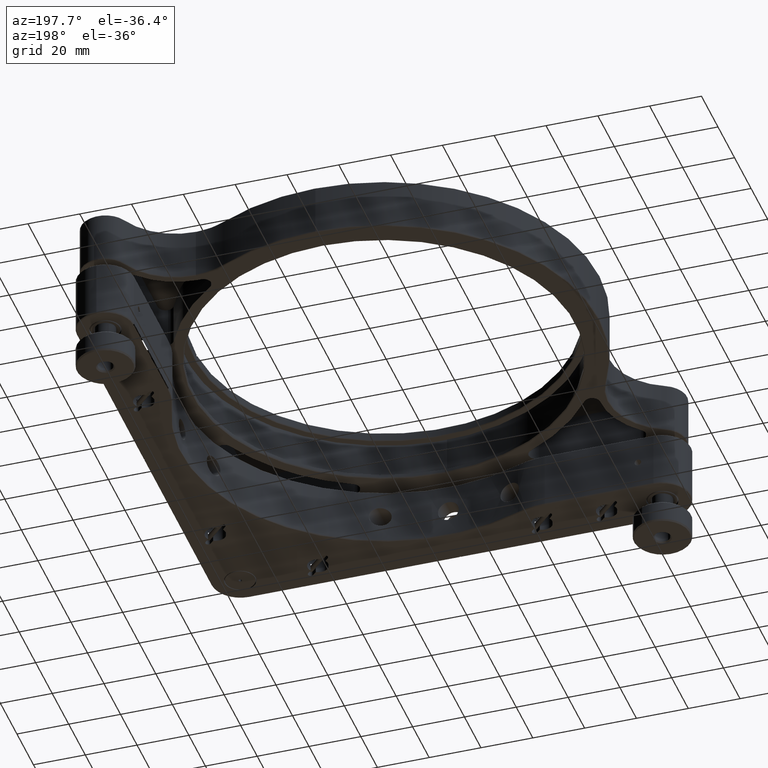
[diagram: clean part render]
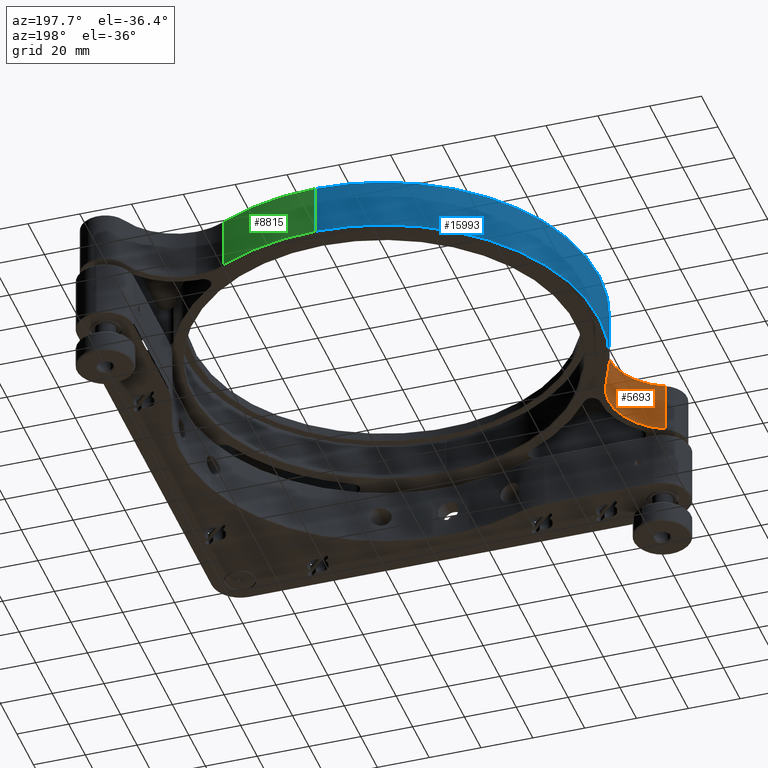
[diagram: same view with three faces highlighted in distinct colors, each labeled with its STEP entity id]
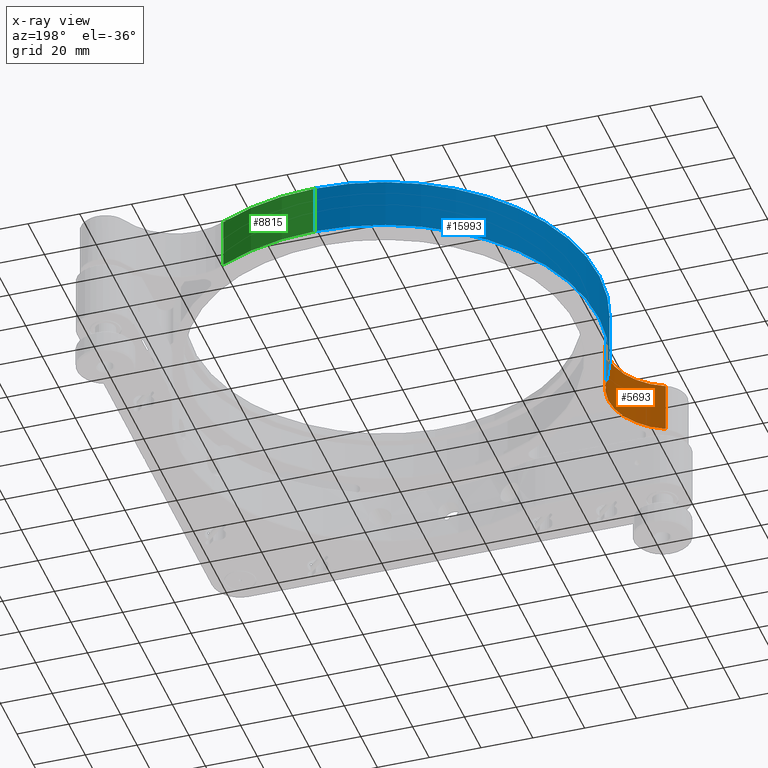
[diagram: x-ray of the same camera — body ghosted, the three highlighted faces saturated]
A machine part, auxiliary view with three faces highlighted in distinct colors.
The next image is the same camera in x-ray (body ghosted, the three faces saturated) — at least one of them is partly hidden behind the body in this view.
Their STEP definitions:

[orange] entity #5693 — the highlighted cylindrical surface (partial cylindrical patch) has radius 25 mm, axis along (-0, 0, -1).
#175 = AXIS2_PLACEMENT_3D ( 'NONE', #4630, #14571, #10315 ) ;
#237 = EDGE_CURVE ( 'NONE', #10784, #5248, #8522, .T. ) ;
#948 = FACE_OUTER_BOUND ( 'NONE', #10072, .T. ) ;
#2134 = LINE ( 'NONE', #13479, #5866 ) ;
#2331 = DIRECTION ( 'NONE',  ( 1.460576560598803085E-21, -1.472652018071817779E-36, 1.000000000000000000 ) ) ;
#2673 = CARTESIAN_POINT ( 'NONE',  ( -95.69883170720795817, -50.05730326211765657, 34.24528137423857999 ) ) ;
#2740 = EDGE_CURVE ( 'NONE', #14915, #5248, #15888, .T. ) ;
#2996 = ORIENTED_EDGE ( 'NONE', *, *, #9679, .T. ) ;
#4477 = AXIS2_PLACEMENT_3D ( 'NONE', #2673, #8378, #14556 ) ;
#4630 = CARTESIAN_POINT ( 'NONE',  ( -95.69883170720795817, -50.05730326211765657, 14.74528137423857999 ) ) ;
#4667 = ORIENTED_EDGE ( 'NONE', *, *, #2740, .F. ) ;
#5248 = VERTEX_POINT ( 'NONE', #8516 ) ;
#5379 = CIRCLE ( 'NONE', #4477, 25.00000000000004974 ) ;
#5610 = VERTEX_POINT ( 'NONE', #10623 ) ;
#5693 = ADVANCED_FACE ( 'NONE', ( #948 ), #14979, .F. ) ;
#5866 = VECTOR ( 'NONE', #2331, 1000.000000000000000 ) ;
#6621 = DIRECTION ( 'NONE',  ( -1.460576560598803085E-21, 1.472652018071817779E-36, -1.000000000000000000 ) ) ;
#8065 = VECTOR ( 'NONE', #16916, 1000.000000000000000 ) ;
#8126 = CARTESIAN_POINT ( 'NONE',  ( -95.69883170720795817, -50.05730326211765657, 34.49528137423859420 ) ) ;
#8378 = DIRECTION ( 'NONE',  ( 1.460576560598803085E-21, -1.472652018071817779E-36, 1.000000000000000000 ) ) ;
#8516 = CARTESIAN_POINT ( 'NONE',  ( -85.40982322372444457, -72.84186611565529290, 14.74528137423857999 ) ) ;
#8522 = CIRCLE ( 'NONE', #175, 25.00000000000004974 ) ;
#8862 = EDGE_CURVE ( 'NONE', #10784, #5610, #2134, .T. ) ;
#9530 = DIRECTION ( 'NONE',  ( 5.551115123125771855E-16, -1.000000000000000000, 0.000000000000000000 ) ) ;
#9679 = EDGE_CURVE ( 'NONE', #14915, #5610, #5379, .T. ) ;
#10072 = EDGE_LOOP ( 'NONE', ( #14892, #10162, #4667, #2996 ) ) ;
#10162 = ORIENTED_EDGE ( 'NONE', *, *, #237, .T. ) ;
#10315 = DIRECTION ( 'NONE',  ( -5.551115123125771855E-16, 1.000000000000000000, 0.000000000000000000 ) ) ;
#10623 = CARTESIAN_POINT ( 'NONE',  ( -73.54632436757657388, -38.46996454403469556, 34.24528137423857999 ) ) ;
#10675 = CARTESIAN_POINT ( 'NONE',  ( -73.54632436757657388, -38.46996454403469556, 14.74528137423857999 ) ) ;
#10784 = VERTEX_POINT ( 'NONE', #10675 ) ;
#13479 = CARTESIAN_POINT ( 'NONE',  ( -73.54632436757657388, -38.46996454403469556, 14.49528137423859420 ) ) ;
#14556 = DIRECTION ( 'NONE',  ( -5.551115123125771855E-16, 1.000000000000000000, 0.000000000000000000 ) ) ;
#14571 = DIRECTION ( 'NONE',  ( -1.460576560598803085E-21, 1.472652018071817779E-36, -1.000000000000000000 ) ) ;
#14892 = ORIENTED_EDGE ( 'NONE', *, *, #8862, .F. ) ;
#14915 = VERTEX_POINT ( 'NONE', #14930 ) ;
#14930 = CARTESIAN_POINT ( 'NONE',  ( -85.40982322372444457, -72.84186611565529290, 34.24528137423857999 ) ) ;
#14979 = CYLINDRICAL_SURFACE ( 'NONE', #15391, 25.00000000000004974 ) ;
#15391 = AXIS2_PLACEMENT_3D ( 'NONE', #8126, #6621, #9530 ) ;
#15708 = CARTESIAN_POINT ( 'NONE',  ( -85.40982322372444457, -72.84186611565529290, 34.49528137423859420 ) ) ;
#15888 = LINE ( 'NONE', #15708, #8065 ) ;
#16916 = DIRECTION ( 'NONE',  ( -1.460576560598803085E-21, 1.472652018071817779E-36, -1.000000000000000000 ) ) ;

[blue] entity #15993 — the highlighted cylindrical surface (partial cylindrical patch) has radius 83 mm, axis along (0, -0, 1).
#1265 = DIRECTION ( 'NONE',  ( 1.460576560598803085E-21, -1.472652018071817779E-36, 1.000000000000000000 ) ) ;
#1450 = FACE_OUTER_BOUND ( 'NONE', #3982, .T. ) ;
#1533 = CARTESIAN_POINT ( 'NONE',  ( -7.225886605188593059E-13, 83.00000000000073896, 14.74528137423857999 ) ) ;
#2134 = LINE ( 'NONE', #13479, #5866 ) ;
#2331 = DIRECTION ( 'NONE',  ( 1.460576560598803085E-21, -1.472652018071817779E-36, 1.000000000000000000 ) ) ;
#3467 = CARTESIAN_POINT ( 'NONE',  ( -7.225886462782378376E-13, 83.00000000000056843, 34.24528137423857999 ) ) ;
#3982 = EDGE_LOOP ( 'NONE', ( #7617, #17458, #13117, #15133 ) ) ;
#4067 = CARTESIAN_POINT ( 'NONE',  ( -6.696032670337678088E-13, 5.872038966181489995E-13, 14.49528137423859420 ) ) ;
#4366 = VECTOR ( 'NONE', #8709, 1000.000000000000000 ) ;
#5610 = VERTEX_POINT ( 'NONE', #10623 ) ;
#5866 = VECTOR ( 'NONE', #2331, 1000.000000000000000 ) ;
#6167 = CARTESIAN_POINT ( 'NONE',  ( -7.225886608840035057E-13, 83.00000000000073896, 14.49528137423859420 ) ) ;
#6445 = DIRECTION ( 'NONE',  ( -6.383782391594646163E-16, 1.000000000000000000, 0.000000000000000000 ) ) ;
#6766 = AXIS2_PLACEMENT_3D ( 'NONE', #11029, #7105, #13969 ) ;
#7059 = CIRCLE ( 'NONE', #13561, 83.00000000000015632 ) ;
#7105 = DIRECTION ( 'NONE',  ( -1.460576560598803085E-21, 1.472652018071817779E-36, -1.000000000000000000 ) ) ;
#7121 = AXIS2_PLACEMENT_3D ( 'NONE', #4067, #1265, #7229 ) ;
#7229 = DIRECTION ( 'NONE',  ( -6.383782391594646163E-16, 1.000000000000000000, 0.000000000000000000 ) ) ;
#7575 = LINE ( 'NONE', #6167, #4366 ) ;
#7617 = ORIENTED_EDGE ( 'NONE', *, *, #13820, .F. ) ;
#8709 = DIRECTION ( 'NONE',  ( 1.460576560598803085E-21, -1.472652018071817779E-36, 1.000000000000000000 ) ) ;
#8862 = EDGE_CURVE ( 'NONE', #10784, #5610, #2134, .T. ) ;
#10623 = CARTESIAN_POINT ( 'NONE',  ( -73.54632436757657388, -38.46996454403469556, 34.24528137423857999 ) ) ;
#10675 = CARTESIAN_POINT ( 'NONE',  ( -73.54632436757657388, -38.46996454403469556, 14.74528137423857999 ) ) ;
#10784 = VERTEX_POINT ( 'NONE', #10675 ) ;
#11029 = CARTESIAN_POINT ( 'NONE',  ( -6.696032381873807733E-13, 5.872038966181489995E-13, 34.24528137423857999 ) ) ;
#11271 = VERTEX_POINT ( 'NONE', #1533 ) ;
#11359 = VERTEX_POINT ( 'NONE', #3467 ) ;
#13117 = ORIENTED_EDGE ( 'NONE', *, *, #8862, .T. ) ;
#13479 = CARTESIAN_POINT ( 'NONE',  ( -73.54632436757657388, -38.46996454403469556, 14.49528137423859420 ) ) ;
#13561 = AXIS2_PLACEMENT_3D ( 'NONE', #15091, #16573, #6445 ) ;
#13820 = EDGE_CURVE ( 'NONE', #11271, #11359, #7575, .T. ) ;
#13969 = DIRECTION ( 'NONE',  ( -6.383782391594646163E-16, 1.000000000000000000, 0.000000000000000000 ) ) ;
#14016 = EDGE_CURVE ( 'NONE', #11271, #10784, #7059, .T. ) ;
#14146 = EDGE_CURVE ( 'NONE', #5610, #11359, #15656, .T. ) ;
#15091 = CARTESIAN_POINT ( 'NONE',  ( -6.696032666686236091E-13, 5.872038966181489995E-13, 14.74528137423857999 ) ) ;
#15133 = ORIENTED_EDGE ( 'NONE', *, *, #14146, .T. ) ;
#15584 = CYLINDRICAL_SURFACE ( 'NONE', #7121, 83.00000000000015632 ) ;
#15656 = CIRCLE ( 'NONE', #6766, 83.00000000000015632 ) ;
#15993 = ADVANCED_FACE ( 'NONE', ( #1450 ), #15584, .T. ) ;
#16573 = DIRECTION ( 'NONE',  ( 1.460576560598803085E-21, -1.472652018071817779E-36, 1.000000000000000000 ) ) ;
#17458 = ORIENTED_EDGE ( 'NONE', *, *, #14016, .T. ) ;

[green] entity #8815 — the highlighted cylindrical surface (partial cylindrical patch) has radius 83 mm, axis along (0, -0, 1).
#267 = CARTESIAN_POINT ( 'NONE',  ( -6.696032666686236091E-13, 5.872038966181489995E-13, 14.74528137423857999 ) ) ;
#1533 = CARTESIAN_POINT ( 'NONE',  ( -7.225886605188593059E-13, 83.00000000000073896, 14.74528137423857999 ) ) ;
#1630 = ORIENTED_EDGE ( 'NONE', *, *, #13820, .T. ) ;
#2022 = CARTESIAN_POINT ( 'NONE',  ( 38.46996454403451082, 73.54632436757653124, 14.49528137423859420 ) ) ;
#2536 = EDGE_LOOP ( 'NONE', ( #5985, #1630, #16166, #12848 ) ) ;
#2691 = EDGE_CURVE ( 'NONE', #5758, #11271, #3877, .T. ) ;
#2800 = DIRECTION ( 'NONE',  ( 1.460576560598803085E-21, -1.472652018071817779E-36, 1.000000000000000000 ) ) ;
#3467 = CARTESIAN_POINT ( 'NONE',  ( -7.225886462782378376E-13, 83.00000000000056843, 34.24528137423857999 ) ) ;
#3535 = CARTESIAN_POINT ( 'NONE',  ( -6.696032670337678088E-13, 5.872038966181489995E-13, 14.49528137423859420 ) ) ;
#3877 = CIRCLE ( 'NONE', #5960, 83.00000000000015632 ) ;
#4366 = VECTOR ( 'NONE', #8709, 1000.000000000000000 ) ;
#4406 = CIRCLE ( 'NONE', #12426, 83.00000000000015632 ) ;
#5213 = DIRECTION ( 'NONE',  ( 1.460576560598803085E-21, -1.472652018071817779E-36, 1.000000000000000000 ) ) ;
#5690 = DIRECTION ( 'NONE',  ( -6.383782391594646163E-16, 1.000000000000000000, 0.000000000000000000 ) ) ;
#5758 = VERTEX_POINT ( 'NONE', #14228 ) ;
#5778 = DIRECTION ( 'NONE',  ( -1.460576560598803085E-21, 1.472652018071817779E-36, -1.000000000000000000 ) ) ;
#5848 = EDGE_CURVE ( 'NONE', #11359, #11910, #4406, .T. ) ;
#5960 = AXIS2_PLACEMENT_3D ( 'NONE', #267, #2800, #11379 ) ;
#5985 = ORIENTED_EDGE ( 'NONE', *, *, #2691, .T. ) ;
#6065 = EDGE_CURVE ( 'NONE', #11910, #5758, #9312, .T. ) ;
#6167 = CARTESIAN_POINT ( 'NONE',  ( -7.225886608840035057E-13, 83.00000000000073896, 14.49528137423859420 ) ) ;
#7575 = LINE ( 'NONE', #6167, #4366 ) ;
#7954 = AXIS2_PLACEMENT_3D ( 'NONE', #3535, #5213, #15068 ) ;
#8587 = VECTOR ( 'NONE', #9505, 1000.000000000000000 ) ;
#8709 = DIRECTION ( 'NONE',  ( 1.460576560598803085E-21, -1.472652018071817779E-36, 1.000000000000000000 ) ) ;
#8815 = ADVANCED_FACE ( 'NONE', ( #17652 ), #13388, .T. ) ;
#9312 = LINE ( 'NONE', #2022, #8587 ) ;
#9505 = DIRECTION ( 'NONE',  ( -1.460576560598803085E-21, 1.472652018071817779E-36, -1.000000000000000000 ) ) ;
#11271 = VERTEX_POINT ( 'NONE', #1533 ) ;
#11359 = VERTEX_POINT ( 'NONE', #3467 ) ;
#11379 = DIRECTION ( 'NONE',  ( -6.383782391594646163E-16, 1.000000000000000000, 0.000000000000000000 ) ) ;
#11910 = VERTEX_POINT ( 'NONE', #16862 ) ;
#12426 = AXIS2_PLACEMENT_3D ( 'NONE', #13859, #5778, #5690 ) ;
#12848 = ORIENTED_EDGE ( 'NONE', *, *, #6065, .T. ) ;
#13388 = CYLINDRICAL_SURFACE ( 'NONE', #7954, 83.00000000000015632 ) ;
#13820 = EDGE_CURVE ( 'NONE', #11271, #11359, #7575, .T. ) ;
#13859 = CARTESIAN_POINT ( 'NONE',  ( -6.696032381873807733E-13, 5.872038966181489995E-13, 34.24528137423857999 ) ) ;
#14228 = CARTESIAN_POINT ( 'NONE',  ( 38.46996454403451082, 73.54632436757653124, 14.74528137423857999 ) ) ;
#15068 = DIRECTION ( 'NONE',  ( -6.383782391594646163E-16, 1.000000000000000000, 0.000000000000000000 ) ) ;
#16166 = ORIENTED_EDGE ( 'NONE', *, *, #5848, .T. ) ;
#16862 = CARTESIAN_POINT ( 'NONE',  ( 38.46996454403451082, 73.54632436757653124, 34.24528137423857999 ) ) ;
#17652 = FACE_OUTER_BOUND ( 'NONE', #2536, .T. ) ;